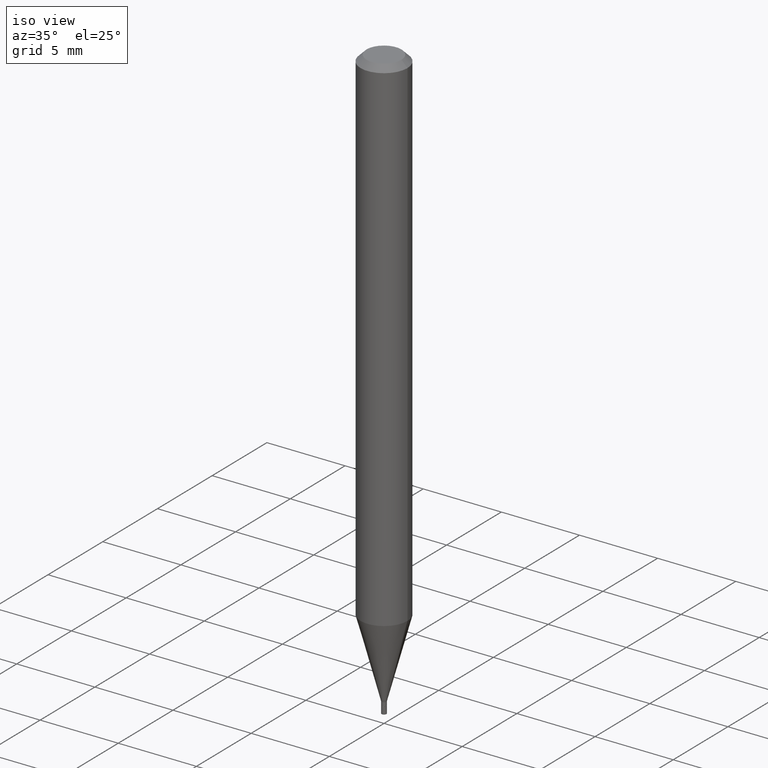
[diagram: clean part render]
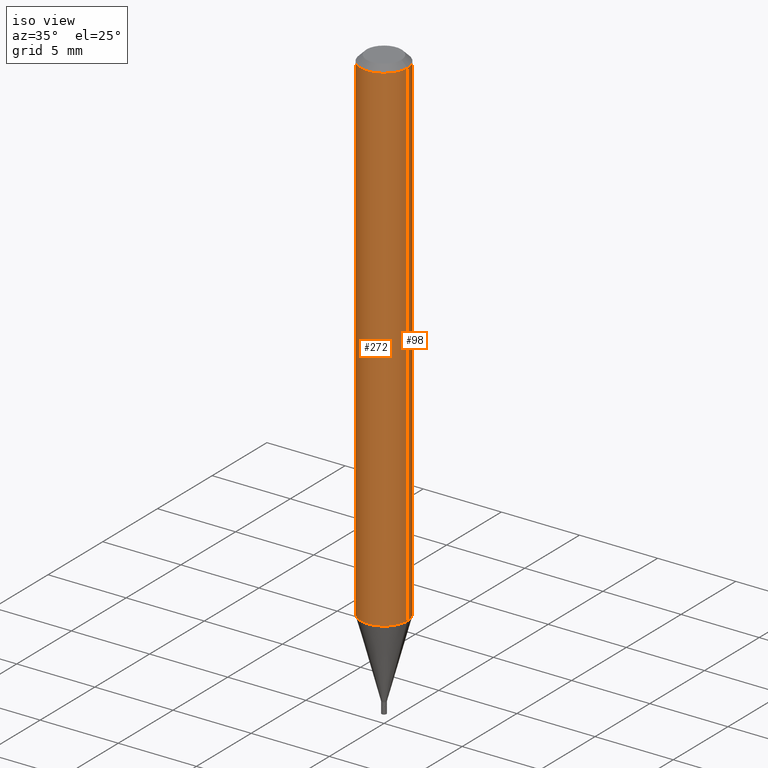
[diagram: same view with one multi-face feature highlighted, each face labeled with its STEP entity id]
A machine part, iso view. The highlighted faces form ONE feature: a constant-radius fillet chain: 2 tangent blend faces with common blend radius 1.4999 mm. The faces share edges in the B-rep.
Their STEP definitions:
[1] entity #98 (Cylinder):
#21 = VERTEX_POINT ( 'NONE', #438 ) ;
#39 = EDGE_CURVE ( 'NONE', #215, #179, #400, .T. ) ;
#53 = DIRECTION ( 'NONE',  ( -2.445468806185136597E-29, 3.491481338843145583E-15, 1.000000000000000000 ) ) ;
#94 = DIRECTION ( 'NONE',  ( -2.445468806185136597E-29, 3.491481338843145583E-15, 1.000000000000000000 ) ) ;
#98 = ADVANCED_FACE ( 'NONE', ( #341 ), #99, .T. ) ;
#99 = CYLINDRICAL_SURFACE ( 'NONE', #115, 0.05904999999999999832 ) ;
#111 = DIRECTION ( 'NONE',  ( -2.445468806185136597E-29, 3.491481338843145583E-15, 1.000000000000000000 ) ) ;
#115 = AXIS2_PLACEMENT_3D ( 'NONE', #241, #53, #396 ) ;
#120 = DIRECTION ( 'NONE',  ( -2.445468806185136877E-29, 3.491481338843145188E-15, 1.000000000000000000 ) ) ;
#135 = CARTESIAN_POINT ( 'NONE',  ( -0.05904999999999999832, 4.195754854663391478E-16, -2.904631170795521892E-30 ) ) ;
#137 = EDGE_CURVE ( 'NONE', #175, #179, #242, .T. ) ;
#150 = DIRECTION ( 'NONE',  ( 1.000000000000000000, -6.982962677686273021E-15, 0.000000000000000000 ) ) ;
#157 = CIRCLE ( 'NONE', #297, 0.05904999999999999832 ) ;
#171 = ORIENTED_EDGE ( 'NONE', *, *, #220, .T. ) ;
#174 = CARTESIAN_POINT ( 'NONE',  ( -0.05904999999999999138, -4.027320042685452251E-15, -1.273641499577714553 ) ) ;
#175 = VERTEX_POINT ( 'NONE', #174 ) ;
#179 = VERTEX_POINT ( 'NONE', #381 ) ;
#189 = CARTESIAN_POINT ( 'NONE',  ( 0.05904999999999999832, -4.123439461173740327E-16, 2.879382386107500220E-30 ) ) ;
#215 = VERTEX_POINT ( 'NONE', #256 ) ;
#220 = EDGE_CURVE ( 'NONE', #21, #175, #157, .T. ) ;
#240 = ORIENTED_EDGE ( 'NONE', *, *, #39, .F. ) ;
#241 = CARTESIAN_POINT ( 'NONE',  ( 0.000000000000000000, 0.000000000000000000, 0.000000000000000000 ) ) ;
#242 = LINE ( 'NONE', #135, #367 ) ;
#256 = CARTESIAN_POINT ( 'NONE',  ( 0.05904999999999999832, -4.647161662000212105E-16, -0.01499999999999999944 ) ) ;
#276 = DIRECTION ( 'NONE',  ( 1.000000000000000000, -6.982962677686266711E-15, 0.000000000000000000 ) ) ;
#279 = DIRECTION ( 'NONE',  ( -2.445468806185136877E-29, 3.491481338843145188E-15, 1.000000000000000000 ) ) ;
#297 = AXIS2_PLACEMENT_3D ( 'NONE', #327, #111, #150 ) ;
#327 = CARTESIAN_POINT ( 'NONE',  ( 3.114650557480160818E-29, -4.446895528151790166E-15, -1.273641499577714553 ) ) ;
#329 = VECTOR ( 'NONE', #120, 39.37007874015748143 ) ;
#334 = AXIS2_PLACEMENT_3D ( 'NONE', #412, #94, #276 ) ;
#341 = FACE_OUTER_BOUND ( 'NONE', #453, .T. ) ;
#342 = ORIENTED_EDGE ( 'NONE', *, *, #459, .F. ) ;
#367 = VECTOR ( 'NONE', #279, 39.37007874015748143 ) ;
#381 = CARTESIAN_POINT ( 'NONE',  ( -0.05904999999999999832, -1.830058388650879721E-15, -0.01499999999999999944 ) ) ;
#382 = ORIENTED_EDGE ( 'NONE', *, *, #137, .T. ) ;
#396 = DIRECTION ( 'NONE',  ( 1.000000000000000000, -6.982962677686266711E-15, 4.876176775795936353E-29 ) ) ;
#400 = CIRCLE ( 'NONE', #334, 0.05904999999999999832 ) ;
#412 = CARTESIAN_POINT ( 'NONE',  ( 3.668203209277705088E-31, -5.237222008264718399E-17, -0.01499999999999999944 ) ) ;
#434 = LINE ( 'NONE', #189, #329 ) ;
#438 = CARTESIAN_POINT ( 'NONE',  ( 0.05904999999999999138, -4.859239474269165875E-15, -1.273641499577714553 ) ) ;
#453 = EDGE_LOOP ( 'NONE', ( #171, #382, #240, #342 ) ) ;
#459 = EDGE_CURVE ( 'NONE', #21, #215, #434, .T. ) ;
[2] entity #272 (Cylinder):
#21 = VERTEX_POINT ( 'NONE', #438 ) ;
#29 = CARTESIAN_POINT ( 'NONE',  ( 3.668203209277705088E-31, -5.237222008264718399E-17, -0.01499999999999999944 ) ) ;
#54 = EDGE_CURVE ( 'NONE', #175, #21, #165, .T. ) ;
#97 = EDGE_LOOP ( 'NONE', ( #402, #376, #378, #386 ) ) ;
#116 = AXIS2_PLACEMENT_3D ( 'NONE', #214, #119, #353 ) ;
#119 = DIRECTION ( 'NONE',  ( -2.445468806185136597E-29, 3.491481338843145583E-15, 1.000000000000000000 ) ) ;
#120 = DIRECTION ( 'NONE',  ( -2.445468806185136877E-29, 3.491481338843145188E-15, 1.000000000000000000 ) ) ;
#133 = DIRECTION ( 'NONE',  ( 1.000000000000000000, -6.982962677686273021E-15, 0.000000000000000000 ) ) ;
#135 = CARTESIAN_POINT ( 'NONE',  ( -0.05904999999999999832, 4.195754854663391478E-16, -2.904631170795521892E-30 ) ) ;
#137 = EDGE_CURVE ( 'NONE', #175, #179, #242, .T. ) ;
#152 = DIRECTION ( 'NONE',  ( 1.000000000000000000, -6.982962677686266711E-15, 0.000000000000000000 ) ) ;
#165 = CIRCLE ( 'NONE', #195, 0.05904999999999999832 ) ;
#174 = CARTESIAN_POINT ( 'NONE',  ( -0.05904999999999999138, -4.027320042685452251E-15, -1.273641499577714553 ) ) ;
#175 = VERTEX_POINT ( 'NONE', #174 ) ;
#179 = VERTEX_POINT ( 'NONE', #381 ) ;
#189 = CARTESIAN_POINT ( 'NONE',  ( 0.05904999999999999832, -4.123439461173740327E-16, 2.879382386107500220E-30 ) ) ;
#195 = AXIS2_PLACEMENT_3D ( 'NONE', #448, #313, #133 ) ;
#214 = CARTESIAN_POINT ( 'NONE',  ( 0.000000000000000000, 0.000000000000000000, 0.000000000000000000 ) ) ;
#215 = VERTEX_POINT ( 'NONE', #256 ) ;
#222 = DIRECTION ( 'NONE',  ( -2.445468806185136597E-29, 3.491481338843145583E-15, 1.000000000000000000 ) ) ;
#242 = LINE ( 'NONE', #135, #367 ) ;
#256 = CARTESIAN_POINT ( 'NONE',  ( 0.05904999999999999832, -4.647161662000212105E-16, -0.01499999999999999944 ) ) ;
#261 = EDGE_CURVE ( 'NONE', #179, #215, #303, .T. ) ;
#272 = ADVANCED_FACE ( 'NONE', ( #292 ), #433, .T. ) ;
#279 = DIRECTION ( 'NONE',  ( -2.445468806185136877E-29, 3.491481338843145188E-15, 1.000000000000000000 ) ) ;
#292 = FACE_OUTER_BOUND ( 'NONE', #97, .T. ) ;
#303 = CIRCLE ( 'NONE', #463, 0.05904999999999999832 ) ;
#313 = DIRECTION ( 'NONE',  ( -2.445468806185136597E-29, 3.491481338843145583E-15, 1.000000000000000000 ) ) ;
#329 = VECTOR ( 'NONE', #120, 39.37007874015748143 ) ;
#353 = DIRECTION ( 'NONE',  ( 1.000000000000000000, -6.982962677686266711E-15, 4.876176775795936353E-29 ) ) ;
#367 = VECTOR ( 'NONE', #279, 39.37007874015748143 ) ;
#376 = ORIENTED_EDGE ( 'NONE', *, *, #54, .T. ) ;
#378 = ORIENTED_EDGE ( 'NONE', *, *, #459, .T. ) ;
#381 = CARTESIAN_POINT ( 'NONE',  ( -0.05904999999999999832, -1.830058388650879721E-15, -0.01499999999999999944 ) ) ;
#386 = ORIENTED_EDGE ( 'NONE', *, *, #261, .F. ) ;
#402 = ORIENTED_EDGE ( 'NONE', *, *, #137, .F. ) ;
#433 = CYLINDRICAL_SURFACE ( 'NONE', #116, 0.05904999999999999832 ) ;
#434 = LINE ( 'NONE', #189, #329 ) ;
#438 = CARTESIAN_POINT ( 'NONE',  ( 0.05904999999999999138, -4.859239474269165875E-15, -1.273641499577714553 ) ) ;
#448 = CARTESIAN_POINT ( 'NONE',  ( 3.114650557480160818E-29, -4.446895528151790166E-15, -1.273641499577714553 ) ) ;
#459 = EDGE_CURVE ( 'NONE', #21, #215, #434, .T. ) ;
#463 = AXIS2_PLACEMENT_3D ( 'NONE', #29, #222, #152 ) ;